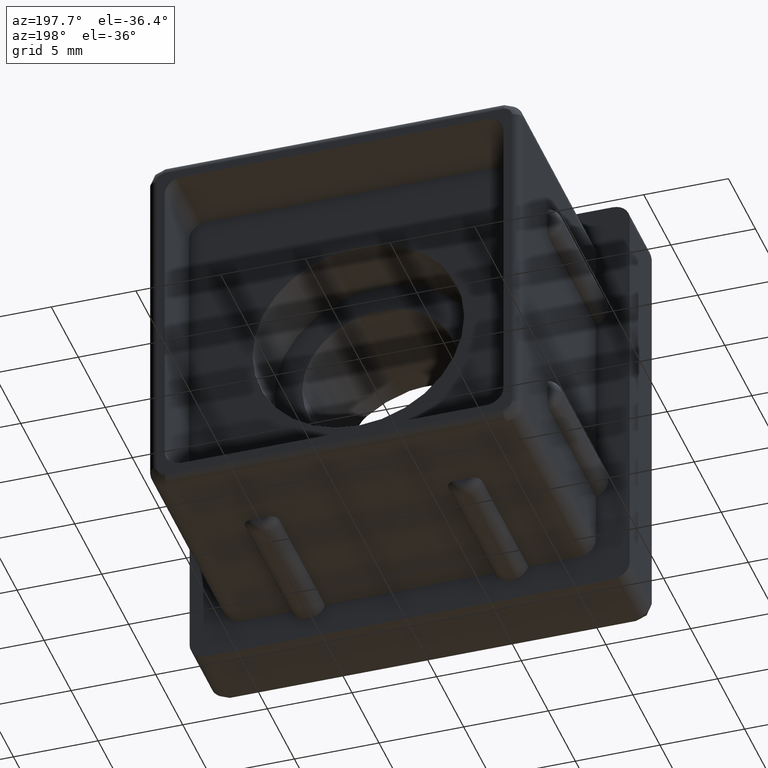
[diagram: clean part render]
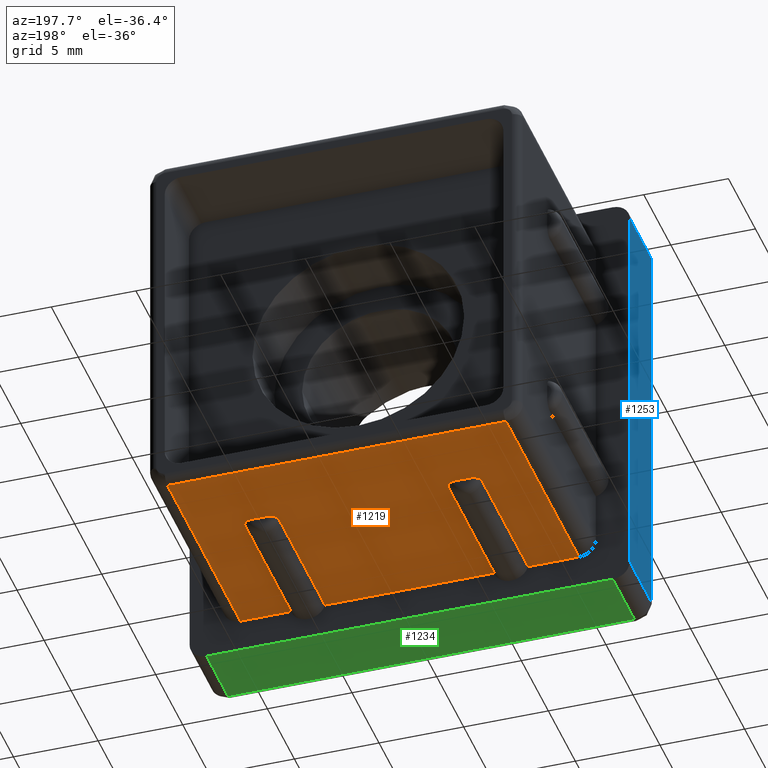
[diagram: same view with three faces highlighted in distinct colors, each labeled with its STEP entity id]
A machine part, auxiliary view with three faces highlighted in distinct colors.
Their STEP definitions:

[orange] entity #1219 — the highlighted planar face has unit normal (-0, 0, -1).
#65=LINE('',#1826,#153);
#66=LINE('',#1855,#154);
#77=LINE('',#2044,#165);
#78=LINE('',#2047,#166);
#79=LINE('',#2050,#167);
#80=LINE('',#2053,#168);
#91=LINE('',#2078,#179);
#92=LINE('',#2080,#180);
#93=LINE('',#2082,#181);
#94=LINE('',#2084,#182);
#95=LINE('',#2086,#183);
#96=LINE('',#2087,#184);
#153=VECTOR('',#1427,0.912870929175276);
#154=VECTOR('',#1436,0.912870929175282);
#165=VECTOR('',#1505,8.50000000000001);
#166=VECTOR('',#1508,8.50000000000001);
#167=VECTOR('',#1511,8.5);
#168=VECTOR('',#1514,8.5);
#179=VECTOR('',#1537,10.);
#180=VECTOR('',#1538,2.99999999999999);
#181=VECTOR('',#1539,13.5);
#182=VECTOR('',#1540,20.);
#183=VECTOR('',#1541,13.5);
#184=VECTOR('',#1542,3.);
#250=PLANE('',#1317);
#290=FACE_OUTER_BOUND('',#364,.T.);
#364=EDGE_LOOP('',(#910,#911,#912,#913,#914,#915,#916,#917,#918,#919,#920,
#921,#922,#923,#924,#925));
#504=B_SPLINE_CURVE_WITH_KNOTS('',3,(#1801,#1802,#1803,#1804,#1805,#1806,
#1807,#1808,#1809,#1810),.UNSPECIFIED.,.F.,.F.,(4,2,2,2,4),(0.0435260225931032,
0.0652293274092313,0.0845560768707886,0.103033729527647,0.121136500508612),
 .UNSPECIFIED.);
#505=B_SPLINE_CURVE_WITH_KNOTS('',3,(#1814,#1815,#1816,#1817,#1818,#1819,
#1820,#1821,#1822,#1823),.UNSPECIFIED.,.F.,.F.,(4,2,2,2,4),(0.363409501525837,
0.381512272506803,0.399989925163661,0.419316674625218,0.441019979441346),
 .UNSPECIFIED.);
#506=B_SPLINE_CURVE_WITH_KNOTS('',3,(#1830,#1831,#1832,#1833,#1834,#1835,
#1836,#1837,#1838,#1839),.UNSPECIFIED.,.F.,.F.,(4,2,2,2,4),(0.0435260225931036,
0.0647979128571311,0.0837518648126613,0.102644661268612,0.121136571814142),
 .UNSPECIFIED.);
#507=B_SPLINE_CURVE_WITH_KNOTS('',3,(#1843,#1844,#1845,#1846,#1847,#1848,
#1849,#1850,#1851,#1852),.UNSPECIFIED.,.F.,.F.,(4,2,2,2,4),(0.363409715442427,
0.381901625987958,0.400794422443908,0.419748374399439,0.441020264663466),
 .UNSPECIFIED.);
#520=VERTEX_POINT('',#1799);
#521=VERTEX_POINT('',#1800);
#522=VERTEX_POINT('',#1811);
#523=VERTEX_POINT('',#1813);
#524=VERTEX_POINT('',#1828);
#525=VERTEX_POINT('',#1829);
#526=VERTEX_POINT('',#1840);
#527=VERTEX_POINT('',#1842);
#556=VERTEX_POINT('',#2043);
#557=VERTEX_POINT('',#2045);
#558=VERTEX_POINT('',#2049);
#559=VERTEX_POINT('',#2051);
#568=VERTEX_POINT('',#2079);
#569=VERTEX_POINT('',#2081);
#570=VERTEX_POINT('',#2083);
#571=VERTEX_POINT('',#2085);
#639=EDGE_CURVE('',#520,#521,#504,.F.);
#641=EDGE_CURVE('',#522,#523,#505,.F.);
#643=EDGE_CURVE('',#522,#521,#65,.T.);
#644=EDGE_CURVE('',#524,#525,#506,.F.);
#646=EDGE_CURVE('',#526,#527,#507,.F.);
#648=EDGE_CURVE('',#526,#525,#66,.T.);
#685=EDGE_CURVE('',#556,#523,#77,.T.);
#687=EDGE_CURVE('',#520,#557,#78,.T.);
#688=EDGE_CURVE('',#558,#527,#79,.T.);
#690=EDGE_CURVE('',#524,#559,#80,.T.);
#703=EDGE_CURVE('',#558,#557,#91,.T.);
#704=EDGE_CURVE('',#568,#559,#92,.T.);
#705=EDGE_CURVE('',#569,#568,#93,.T.);
#706=EDGE_CURVE('',#570,#569,#94,.T.);
#707=EDGE_CURVE('',#571,#570,#95,.T.);
#708=EDGE_CURVE('',#556,#571,#96,.T.);
#910=ORIENTED_EDGE('',*,*,#685,.T.);
#911=ORIENTED_EDGE('',*,*,#641,.F.);
#912=ORIENTED_EDGE('',*,*,#643,.T.);
#913=ORIENTED_EDGE('',*,*,#639,.F.);
#914=ORIENTED_EDGE('',*,*,#687,.T.);
#915=ORIENTED_EDGE('',*,*,#703,.F.);
#916=ORIENTED_EDGE('',*,*,#688,.T.);
#917=ORIENTED_EDGE('',*,*,#646,.F.);
#918=ORIENTED_EDGE('',*,*,#648,.T.);
#919=ORIENTED_EDGE('',*,*,#644,.F.);
#920=ORIENTED_EDGE('',*,*,#690,.T.);
#921=ORIENTED_EDGE('',*,*,#704,.F.);
#922=ORIENTED_EDGE('',*,*,#705,.F.);
#923=ORIENTED_EDGE('',*,*,#706,.F.);
#924=ORIENTED_EDGE('',*,*,#707,.F.);
#925=ORIENTED_EDGE('',*,*,#708,.F.);
#1219=ADVANCED_FACE('',(#290),#250,.T.);
#1317=AXIS2_PLACEMENT_3D('',#2077,#1535,#1536);
#1427=DIRECTION('',(-1.,0.,2.01858731750028E-16));
#1436=DIRECTION('',(-1.,0.,2.01858731750028E-16));
#1505=DIRECTION('',(0.,1.,0.));
#1508=DIRECTION('',(0.,-1.,0.));
#1511=DIRECTION('',(0.,1.,0.));
#1514=DIRECTION('',(0.,-1.,0.));
#1535=DIRECTION('center_axis',(-2.01858731750028E-16,0.,-1.));
#1536=DIRECTION('ref_axis',(-1.,0.,1.77635683940025E-16));
#1537=DIRECTION('',(1.,0.,-2.01858731750028E-16));
#1538=DIRECTION('',(1.,0.,-2.01858731750028E-16));
#1539=DIRECTION('',(0.,-1.,0.));
#1540=DIRECTION('',(-1.,0.,2.01858731750028E-16));
#1541=DIRECTION('',(0.,1.,0.));
#1542=DIRECTION('',(1.,0.,-2.01858731750028E-16));
#1799=CARTESIAN_POINT('',(5.,8.50000000000001,-11.));
#1800=CARTESIAN_POINT('',(5.54356453541236,9.,-11.));
#1801=CARTESIAN_POINT('Ctrl Pts',(5.54356453541236,9.00000000000001,-11.));
#1802=CARTESIAN_POINT('Ctrl Pts',(5.47122018602527,9.00000000000001,-11.));
#1803=CARTESIAN_POINT('Ctrl Pts',(5.38565917284403,8.98530823147243,-11.));
#1804=CARTESIAN_POINT('Ctrl Pts',(5.25868936221369,8.93447676691722,-11.));
#1805=CARTESIAN_POINT('Ctrl Pts',(5.19361247485801,8.89274703353569,-11.));
#1806=CARTESIAN_POINT('Ctrl Pts',(5.10350729930867,8.80465188421401,-11.));
#1807=CARTESIAN_POINT('Ctrl Pts',(5.06172871334836,8.74368198903224,-11.));
#1808=CARTESIAN_POINT('Ctrl Pts',(5.01439951956451,8.63130748317783,-11.));
#1809=CARTESIAN_POINT('Ctrl Pts',(5.,8.56034256993656,-11.));
#1810=CARTESIAN_POINT('Ctrl Pts',(5.,8.50000000000001,-11.));
#1811=CARTESIAN_POINT('',(6.45643546458764,9.,-11.));
#1813=CARTESIAN_POINT('',(7.,8.50000000000001,-11.));
#1814=CARTESIAN_POINT('Ctrl Pts',(7.,8.50000000000001,-11.));
#1815=CARTESIAN_POINT('Ctrl Pts',(7.,8.56034256993656,-11.));
#1816=CARTESIAN_POINT('Ctrl Pts',(6.98560048043548,8.63130748317783,-11.));
#1817=CARTESIAN_POINT('Ctrl Pts',(6.93827128665164,8.74368198903224,-11.));
#1818=CARTESIAN_POINT('Ctrl Pts',(6.89649270069132,8.80465188421401,-11.));
#1819=CARTESIAN_POINT('Ctrl Pts',(6.80638752514199,8.89274703353569,-11.));
#1820=CARTESIAN_POINT('Ctrl Pts',(6.74131063778631,8.93447676691722,-11.));
#1821=CARTESIAN_POINT('Ctrl Pts',(6.61434082715597,8.98530823147243,-11.));
#1822=CARTESIAN_POINT('Ctrl Pts',(6.52877981397473,9.00000000000001,-11.));
#1823=CARTESIAN_POINT('Ctrl Pts',(6.45643546458764,9.00000000000001,-11.));
#1826=CARTESIAN_POINT('',(8.5,9.,-11.));
#1828=CARTESIAN_POINT('',(-7.00000000000001,8.5,-11.));
#1829=CARTESIAN_POINT('',(-6.45643546458765,9.,-11.));
#1830=CARTESIAN_POINT('Ctrl Pts',(-6.45643546458765,9.,-11.));
#1831=CARTESIAN_POINT('Ctrl Pts',(-6.52734176546774,9.,-11.));
#1832=CARTESIAN_POINT('Ctrl Pts',(-6.61125188855841,8.98589382087927,-11.));
#1833=CARTESIAN_POINT('Ctrl Pts',(-6.73614042631189,8.93708863391966,-11.));
#1834=CARTESIAN_POINT('Ctrl Pts',(-6.80046451283533,8.89695823884754,-11.));
#1835=CARTESIAN_POINT('Ctrl Pts',(-6.89213601774212,8.81028858939545,-11.));
#1836=CARTESIAN_POINT('Ctrl Pts',(-6.93564837627126,8.74850122189976,-11.));
#1837=CARTESIAN_POINT('Ctrl Pts',(-6.9849821298434,8.63406673866202,-11.));
#1838=CARTESIAN_POINT('Ctrl Pts',(-7.00000000000001,8.56163970181844,-11.));
#1839=CARTESIAN_POINT('Ctrl Pts',(-7.00000000000001,8.5,-11.));
#1840=CARTESIAN_POINT('',(-5.54356453541237,9.,-11.));
#1842=CARTESIAN_POINT('',(-5.00000000000001,8.5,-11.));
#1843=CARTESIAN_POINT('Ctrl Pts',(-5.00000000000001,8.5,-11.));
#1844=CARTESIAN_POINT('Ctrl Pts',(-5.00000000000001,8.56163970181844,-11.));
#1845=CARTESIAN_POINT('Ctrl Pts',(-5.01501787015662,8.63406673866202,-11.));
#1846=CARTESIAN_POINT('Ctrl Pts',(-5.06435162372876,8.74850122189976,-11.));
#1847=CARTESIAN_POINT('Ctrl Pts',(-5.1078639822579,8.81028858939545,-11.));
#1848=CARTESIAN_POINT('Ctrl Pts',(-5.19953548716469,8.89695823884754,-11.));
#1849=CARTESIAN_POINT('Ctrl Pts',(-5.26385957368813,8.93708863391966,-11.));
#1850=CARTESIAN_POINT('Ctrl Pts',(-5.38874811144161,8.98589382087927,-11.));
#1851=CARTESIAN_POINT('Ctrl Pts',(-5.47265823453228,9.,-11.));
#1852=CARTESIAN_POINT('Ctrl Pts',(-5.54356453541237,9.,-11.));
#1855=CARTESIAN_POINT('',(2.5,9.,-11.));
#2043=CARTESIAN_POINT('',(7.,0.,-11.));
#2044=CARTESIAN_POINT('',(7.,0.,-11.));
#2045=CARTESIAN_POINT('',(5.,0.,-11.));
#2047=CARTESIAN_POINT('',(5.,0.,-11.));
#2049=CARTESIAN_POINT('',(-5.00000000000001,0.,-11.));
#2050=CARTESIAN_POINT('',(-5.00000000000001,0.,-11.));
#2051=CARTESIAN_POINT('',(-7.00000000000001,0.,-11.));
#2053=CARTESIAN_POINT('',(-7.00000000000001,0.,-11.));
#2077=CARTESIAN_POINT('Origin',(11.,0.,-11.));
#2078=CARTESIAN_POINT('',(-11.,0.,-11.));
#2079=CARTESIAN_POINT('',(-10.,0.,-11.));
#2080=CARTESIAN_POINT('',(-11.,0.,-11.));
#2081=CARTESIAN_POINT('',(-10.,13.5,-11.));
#2082=CARTESIAN_POINT('',(-10.,0.,-11.));
#2083=CARTESIAN_POINT('',(10.,13.5,-11.));
#2084=CARTESIAN_POINT('',(5.5,13.5,-11.));
#2085=CARTESIAN_POINT('',(10.,0.,-11.));
#2086=CARTESIAN_POINT('',(10.,0.,-11.));
#2087=CARTESIAN_POINT('',(-11.,0.,-11.));

[blue] entity #1253 — the highlighted planar face has unit normal (-1, 0, -0).
#113=LINE('',#2143,#201);
#127=LINE('',#2218,#215);
#137=LINE('',#2326,#225);
#140=LINE('',#2334,#228);
#201=VECTOR('',#1583,24.);
#215=VECTOR('',#1635,4.);
#225=VECTOR('',#1725,24.);
#228=VECTOR('',#1736,4.);
#258=PLANE('',#1393);
#324=FACE_OUTER_BOUND('',#403,.T.);
#403=EDGE_LOOP('',(#1123,#1124,#1125,#1126));
#587=VERTEX_POINT('',#2136);
#589=VERTEX_POINT('',#2141);
#604=VERTEX_POINT('',#2217);
#626=VERTEX_POINT('',#2325);
#732=EDGE_CURVE('',#589,#587,#113,.T.);
#758=EDGE_CURVE('',#587,#604,#127,.T.);
#796=EDGE_CURVE('',#604,#626,#137,.T.);
#802=EDGE_CURVE('',#626,#589,#140,.T.);
#1123=ORIENTED_EDGE('',*,*,#732,.F.);
#1124=ORIENTED_EDGE('',*,*,#802,.F.);
#1125=ORIENTED_EDGE('',*,*,#796,.F.);
#1126=ORIENTED_EDGE('',*,*,#758,.F.);
#1253=ADVANCED_FACE('',(#324),#258,.T.);
#1393=AXIS2_PLACEMENT_3D('',#2335,#1737,#1738);
#1583=DIRECTION('',(1.70803542250024E-16,0.,-1.));
#1635=DIRECTION('',(0.,1.,0.));
#1725=DIRECTION('',(-1.70803542250024E-16,0.,1.));
#1736=DIRECTION('',(0.,-1.,0.));
#1737=DIRECTION('center_axis',(-1.,0.,-1.70803542250024E-16));
#1738=DIRECTION('ref_axis',(1.77635683940025E-16,0.,-1.));
#2136=CARTESIAN_POINT('',(-13.,-4.,-12.));
#2141=CARTESIAN_POINT('',(-13.,-4.,12.));
#2143=CARTESIAN_POINT('',(-13.,-4.,6.5));
#2217=CARTESIAN_POINT('',(-13.,0.,-12.));
#2218=CARTESIAN_POINT('',(-13.,0.,-12.));
#2325=CARTESIAN_POINT('',(-13.,0.,12.));
#2326=CARTESIAN_POINT('',(-13.,0.,-13.));
#2334=CARTESIAN_POINT('',(-13.,0.,12.));
#2335=CARTESIAN_POINT('Origin',(-13.,0.,13.));

[green] entity #1234 — the highlighted planar face has unit normal (-0, 0, -1).
#120=LINE('',#2201,#208);
#124=LINE('',#2210,#212);
#125=LINE('',#2214,#213);
#126=LINE('',#2215,#214);
#208=VECTOR('',#1618,24.);
#212=VECTOR('',#1626,4.);
#213=VECTOR('',#1631,4.);
#214=VECTOR('',#1632,24.);
#254=PLANE('',#1347);
#305=FACE_OUTER_BOUND('',#379,.T.);
#379=EDGE_LOOP('',(#1006,#1007,#1008,#1009));
#584=VERTEX_POINT('',#2131);
#599=VERTEX_POINT('',#2195);
#602=VERTEX_POINT('',#2209);
#603=VERTEX_POINT('',#2213);
#750=EDGE_CURVE('',#584,#599,#120,.T.);
#754=EDGE_CURVE('',#599,#602,#124,.T.);
#756=EDGE_CURVE('',#603,#584,#125,.T.);
#757=EDGE_CURVE('',#602,#603,#126,.T.);
#1006=ORIENTED_EDGE('',*,*,#750,.F.);
#1007=ORIENTED_EDGE('',*,*,#756,.F.);
#1008=ORIENTED_EDGE('',*,*,#757,.F.);
#1009=ORIENTED_EDGE('',*,*,#754,.F.);
#1234=ADVANCED_FACE('',(#305),#254,.T.);
#1347=AXIS2_PLACEMENT_3D('',#2212,#1629,#1630);
#1618=DIRECTION('',(1.,0.,-1.70803542250024E-16));
#1626=DIRECTION('',(0.,1.,0.));
#1629=DIRECTION('center_axis',(-1.70803542250024E-16,0.,-1.));
#1630=DIRECTION('ref_axis',(1.,0.,-1.77635683940025E-16));
#1631=DIRECTION('',(0.,-1.,0.));
#1632=DIRECTION('',(-1.,0.,1.70803542250024E-16));
#2131=CARTESIAN_POINT('',(-12.,-4.,-13.));
#2195=CARTESIAN_POINT('',(12.,-4.,-13.));
#2201=CARTESIAN_POINT('',(-6.5,-4.,-13.));
#2209=CARTESIAN_POINT('',(12.,0.,-13.));
#2210=CARTESIAN_POINT('',(12.,0.,-13.));
#2212=CARTESIAN_POINT('Origin',(-13.,0.,-13.));
#2213=CARTESIAN_POINT('',(-12.,0.,-13.));
#2214=CARTESIAN_POINT('',(-12.,0.,-13.));
#2215=CARTESIAN_POINT('',(13.,0.,-13.));